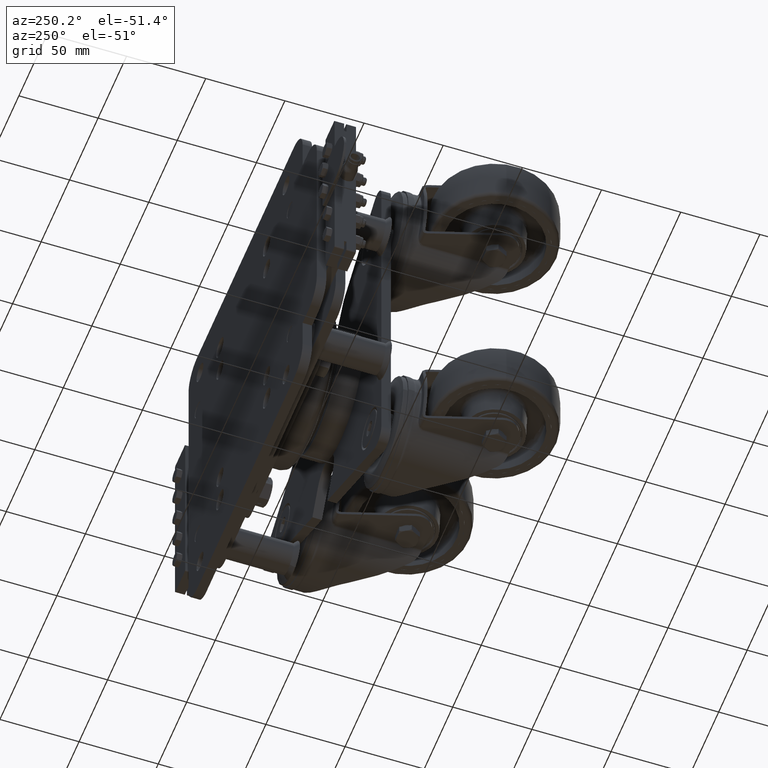
[diagram: clean part render]
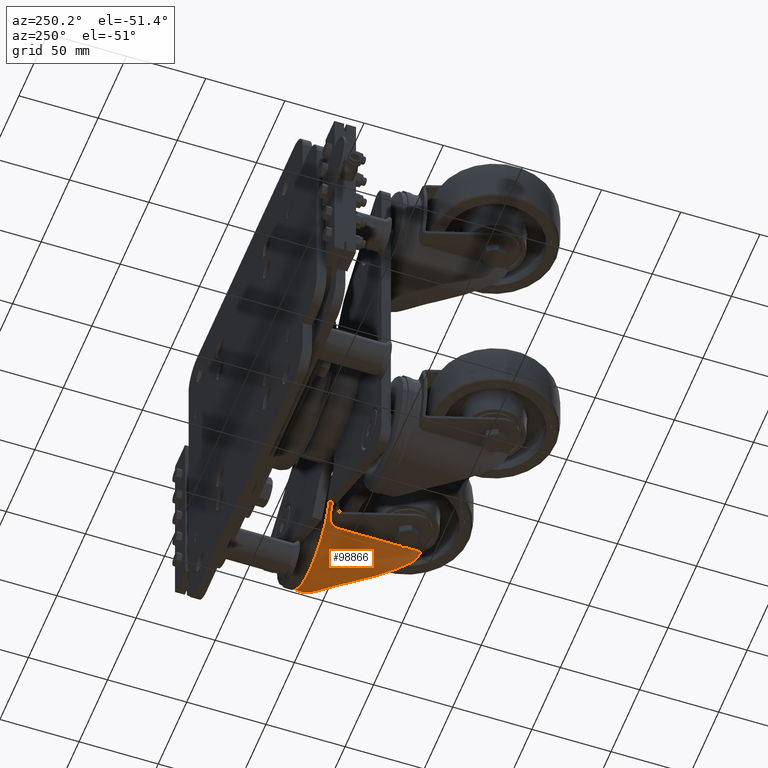
[diagram: same view with one face highlighted and labeled with its STEP entity id]
A machine part, auxiliary view. The second image highlights one B-rep face of the part: STEP entity #98866.
In plain terms, the highlighted cylindrical surface (partial cylindrical patch) has radius 35.5 mm, axis along (0, 1, -0).
Its self-contained STEP definition (entity closure, byte-faithful):
#9 = CARTESIAN_POINT ( 'NONE',  ( 94.95615465247026066, -96.94187952095114724, -35.77692591421072166 ) ) ;
#622 = CARTESIAN_POINT ( 'NONE',  ( 75.17995511379929496, -123.3000000000000540, -23.82236842105244534 ) ) ;
#1571 = CARTESIAN_POINT ( 'NONE',  ( 75.17995511379929496, -66.80000000000003979, -23.82236842105246666 ) ) ;
#2794 = CARTESIAN_POINT ( 'NONE',  ( 134.7773984609399918, -65.15536893343616498, -12.42892271601912491 ) ) ;
#3236 = CARTESIAN_POINT ( 'NONE',  ( 137.0000000000002558, -64.80000000000001137, -2.541986794972076691 ) ) ;
#3336 = ORIENTED_EDGE ( 'NONE', *, *, #82541, .T. ) ;
#3916 = CYLINDRICAL_SURFACE ( 'NONE', #46824, 35.50000000000000711 ) ;
#4533 = CARTESIAN_POINT ( 'NONE',  ( 102.8598590024065231, -85.65421990771076821, -35.47394513574102604 ) ) ;
#4790 = CARTESIAN_POINT ( 'NONE',  ( 77.18156145839577675, -120.2128750562828117, -25.87200173106295509 ) ) ;
#5448 = ORIENTED_EDGE ( 'NONE', *, *, #90269, .T. ) ;
#5658 = CARTESIAN_POINT ( 'NONE',  ( 78.68471253961250511, -119.2834382526172732, -27.19948940533992854 ) ) ;
#5874 = VERTEX_POINT ( 'NONE', #109122 ) ;
#6351 = CARTESIAN_POINT ( 'NONE',  ( 74.09830943354448607, -64.24686308670321466, -22.56983283279251751 ) ) ;
#6512 = CARTESIAN_POINT ( 'NONE',  ( 79.17180250993905588, -118.8995822694845685, -27.60074569021914570 ) ) ;
#11995 = CARTESIAN_POINT ( 'NONE',  ( 107.2690294437377361, -80.20661461310176321, -35.03093118283457130 ) ) ;
#12885 = CARTESIAN_POINT ( 'NONE',  ( 131.7239736998475621, -65.81648195536767787, -18.63217475714298033 ) ) ;
#14174 = CARTESIAN_POINT ( 'NONE',  ( 105.5784735804500798, -82.11215388130182191, -35.26728265622191572 ) ) ;
#15709 = VERTEX_POINT ( 'NONE', #34154 ) ;
#16505 = CARTESIAN_POINT ( 'NONE',  ( 74.85251593104401024, -65.90895383215855929, -23.45707028660707039 ) ) ;
#16797 = CARTESIAN_POINT ( 'NONE',  ( 66.00000000000031264, -123.3000000000000398, 1.764700454505539706E-13 ) ) ;
#19697 = EDGE_CURVE ( 'NONE', #43195, #51675, #125429, .T. ) ;
#19869 = CARTESIAN_POINT ( 'NONE',  ( 80.93017896161954639, -116.9730487464526760, -28.93324147842719896 ) ) ;
#22056 = CARTESIAN_POINT ( 'NONE',  ( 136.7300673293382545, -64.83489290149184114, -5.054412165865914019 ) ) ;
#22500 = CARTESIAN_POINT ( 'NONE',  ( 126.7663410799589627, -67.28916424157799270, -25.05481059473312300 ) ) ;
#22929 = CARTESIAN_POINT ( 'NONE',  ( 130.3206681362270558, -66.18753910577522959, -20.73675970274151581 ) ) ;
#23350 = CARTESIAN_POINT ( 'NONE',  ( 117.2099109091087996, -71.98387142428229879, -31.85335030264054623 ) ) ;
#23519 = EDGE_CURVE ( 'NONE', #37863, #58944, #108741, .T. ) ;
#24196 = ORIENTED_EDGE ( 'NONE', *, *, #104619, .T. ) ;
#25561 = EDGE_CURVE ( 'NONE', #108303, #15709, #63036, .T. ) ;
#26410 = CARTESIAN_POINT ( 'NONE',  ( 75.17995511379929496, -120.9347103782721433, -23.82236842105244534 ) ) ;
#27008 = AXIS2_PLACEMENT_3D ( 'NONE', #76760, #86824, #96870 ) ;
#29501 = EDGE_CURVE ( 'NONE', #77250, #15709, #83697, .T. ) ;
#30998 = CIRCLE ( 'NONE', #27008, 35.50000000000000711 ) ;
#31711 = ORIENTED_EDGE ( 'NONE', *, *, #19697, .T. ) ;
#32530 = CARTESIAN_POINT ( 'NONE',  ( 123.0794513467505737, -68.83356066078999902, -28.19471165324780770 ) ) ;
#32967 = CARTESIAN_POINT ( 'NONE',  ( 136.0558107432777035, -64.93895908377098181, -8.157779371437467120 ) ) ;
#33861 = CARTESIAN_POINT ( 'NONE',  ( 133.2689278267886834, -65.45551017891928325, -15.89239485598071333 ) ) ;
#34076 =( BOUNDED_CURVE ( )  B_SPLINE_CURVE ( 3, ( #109791, #9, #108949, #118569 ),
 .UNSPECIFIED., .F., .F. ) 
 B_SPLINE_CURVE_WITH_KNOTS ( ( 4, 4 ),
 ( 1.532481065245487661, 2.188827412656835225 ),
 .UNSPECIFIED. ) 
 CURVE ( )  GEOMETRIC_REPRESENTATION_ITEM ( )  RATIONAL_B_SPLINE_CURVE ( ( 1.000000000000000000, 0.9644218232756417430, 0.9644218232756417430, 1.000000000000000000 ) ) 
 REPRESENTATION_ITEM ( '' )  );
#34154 = CARTESIAN_POINT ( 'NONE',  ( 137.0000000000003126, -60.30000000000003268, 1.049115577279662282E-13 ) ) ;
#34832 = VECTOR ( 'NONE', #56016, 1000.000000000000000 ) ;
#35393 = CARTESIAN_POINT ( 'NONE',  ( 76.17364626529617055, -120.6448065672153547, -24.88619563490084730 ) ) ;
#35838 = CARTESIAN_POINT ( 'NONE',  ( 80.93017896161954639, -116.9730487464526760, -28.93324147842719896 ) ) ;
#36533 = CARTESIAN_POINT ( 'NONE',  ( 73.92285994500380752, -63.92899246514931377, -22.35682227880876383 ) ) ;
#37809 = CARTESIAN_POINT ( 'NONE',  ( 72.40632673909229311, -62.51469049374032494, -20.34642287137215177 ) ) ;
#37863 = VERTEX_POINT ( 'NONE', #1571 ) ;
#37870 = CARTESIAN_POINT ( 'NONE',  ( 74.49964136314075347, -65.04628353443216326, -23.05001490492072946 ) ) ;
#43026 = CARTESIAN_POINT ( 'NONE',  ( 101.5000000000003126, -60.30000000000003268, 1.268188338706549371E-13 ) ) ;
#43195 = VERTEX_POINT ( 'NONE', #19869 ) ;
#43459 = CARTESIAN_POINT ( 'NONE',  ( 128.4426355032607887, -66.72988773954885744, -23.25188656308728596 ) ) ;
#43883 = CARTESIAN_POINT ( 'NONE',  ( 135.9039378900746442, -64.96295396468880767, -8.776572712892075856 ) ) ;
#44238 = VECTOR ( 'NONE', #116549, 1000.000000000000000 ) ;
#46824 = AXIS2_PLACEMENT_3D ( 'NONE', #84916, #105076, #83579 ) ;
#47757 = CARTESIAN_POINT ( 'NONE',  ( 137.0000000000003126, -123.3000000000000398, 1.160666759953863849E-13 ) ) ;
#49092 = CARTESIAN_POINT ( 'NONE',  ( 73.31142364173912540, -63.17386434503004011, -21.58167533668649440 ) ) ;
#51675 = VERTEX_POINT ( 'NONE', #26410 ) ;
#52541 = CARTESIAN_POINT ( 'NONE',  ( 135.5654223588325920, -65.01840625448230071, -10.01030321434592985 ) ) ;
#53402 = CARTESIAN_POINT ( 'NONE',  ( 114.2297939752632061, -74.00841788585709935, -33.15511428304471053 ) ) ;
#53822 = DIRECTION ( 'NONE',  ( -5.551115123125663140E-17, -1.000000000000000000, 3.432265860444727251E-16 ) ) ;
#53830 = CARTESIAN_POINT ( 'NONE',  ( 124.0256753079192862, -68.41405827567274400, -27.44464314868675103 ) ) ;
#54478 = VERTEX_POINT ( 'NONE', #111948 ) ;
#54954 = CARTESIAN_POINT ( 'NONE',  ( 80.10125502634183192, -118.0342248201624642, -28.33172071162463368 ) ) ;
#55149 = CARTESIAN_POINT ( 'NONE',  ( 103.5940461062626383, -84.60569205876288379, -35.44580079096039071 ) ) ;
#55987 = CARTESIAN_POINT ( 'NONE',  ( 105.9918965993286690, -81.62781127845798324, -35.21725302681364411 ) ) ;
#56016 = DIRECTION ( 'NONE',  ( 5.551115123125663140E-17, 1.000000000000000000, -3.432265860444727251E-16 ) ) ;
#58260 = CARTESIAN_POINT ( 'NONE',  ( 71.71521320424501766, -62.30000000000003979, -19.32078861457022967 ) ) ;
#58944 = VERTEX_POINT ( 'NONE', #82053 ) ;
#58988 = ORIENTED_EDGE ( 'NONE', *, *, #23519, .T. ) ;
#61726 = FACE_OUTER_BOUND ( 'NONE', #112672, .T. ) ;
#62714 = CARTESIAN_POINT ( 'NONE',  ( 137.0000000000003126, -64.80000000000001137, 9.598792071177399696E-14 ) ) ;
#62882 = ORIENTED_EDGE ( 'NONE', *, *, #83167, .T. ) ;
#63036 = LINE ( 'NONE', #47757, #34832 ) ;
#63562 = CARTESIAN_POINT ( 'NONE',  ( 109.4587336611183872, -77.92024011640876324, -34.64208427128381373 ) ) ;
#64004 = DIRECTION ( 'NONE',  ( -1.000000000000000000, 0.0000000000000000000, 9.119840224245166076E-16 ) ) ;
#64012 = CARTESIAN_POINT ( 'NONE',  ( 120.1689089635367651, -70.26462535058655590, -30.21606292406876548 ) ) ;
#65801 = LINE ( 'NONE', #622, #128478 ) ;
#67132 = CARTESIAN_POINT ( 'NONE',  ( 73.08749617714593683, -62.96822544684846434, -21.28674432241669479 ) ) ;
#68012 = CARTESIAN_POINT ( 'NONE',  ( 71.49083145045379695, -62.30000000000003979, -18.96575342465736824 ) ) ;
#71022 = B_SPLINE_CURVE_WITH_KNOTS ( 'NONE', 3,
 ( #62714, #3236, #22056, #32967, #43883, #52541, #102109, #2794, #122248, #33861, #72766, #12885, #73189, #113898, #22929, #43459, #22500, #83250, #53830, #32530, #82811, #92933, #64012, #71908, #23350, #113472, #53402, #123536, #63562, #11995, #85027, #55987, #14174, #84123, #55149, #4533 ),
 .UNSPECIFIED., .F., .F.,
 ( 4, 2, 2, 2, 2, 2, 2, 2, 2, 2, 2, 2, 2, 2, 2, 2, 2, 4 ),
 ( 0.06069026540051974949, 0.06826659759603675992, 0.07016068064491602640, 0.07205476369379529289, 0.07584292979155381198, 0.07963109588931233107, 0.08152517893819155592, 0.08341926198707079465, 0.09099559418258763854, 0.09288967723146684952, 0.09478376028034606049, 0.09857192637810446856, 0.1023600924758628905, 0.1061482585736213125, 0.1137245907691381008, 0.1156186738180172979, 0.1175127568668964950, 0.1213009229646549031 ),
 .UNSPECIFIED. ) ;
#71908 = CARTESIAN_POINT ( 'NONE',  ( 118.2003212091128006, -71.37909565189850980, -31.34705555602569760 ) ) ;
#72527 = EDGE_CURVE ( 'NONE', #108303, #5874, #71022, .T. ) ;
#72766 = CARTESIAN_POINT ( 'NONE',  ( 132.6866364854002995, -65.58326439533929886, -17.00675731251048362 ) ) ;
#73189 = CARTESIAN_POINT ( 'NONE',  ( 131.3881884560662456, -65.90118379121915382, -19.16627711045373417 ) ) ;
#74746 = B_SPLINE_CURVE_WITH_KNOTS ( 'NONE', 3,
 ( #6351, #36533, #118315, #49092, #67132, #127085, #37809, #88139, #58260, #68012 ),
 .UNSPECIFIED., .F., .F.,
 ( 4, 2, 2, 2, 4 ),
 ( 0.0000000000000000000, 0.001242587929141079472, 0.002485175858282158944, 0.003727763787423238415, 0.004970351716564317887 ),
 .UNSPECIFIED. ) ;
#75405 = ORIENTED_EDGE ( 'NONE', *, *, #112521, .T. ) ;
#75650 = CARTESIAN_POINT ( 'NONE',  ( 77.68603470932848154, -119.9480836917929878, -26.33597468733170288 ) ) ;
#75995 = CARTESIAN_POINT ( 'NONE',  ( 74.31052024465056149, -64.63133603665491478, -22.82747474905589513 ) ) ;
#76760 = CARTESIAN_POINT ( 'NONE',  ( 101.5000000000003126, -62.30000000000003268, 1.275052870427438922E-13 ) ) ;
#77108 = ORIENTED_EDGE ( 'NONE', *, *, #25561, .F. ) ;
#77250 = VERTEX_POINT ( 'NONE', #105991 ) ;
#80422 = ORIENTED_EDGE ( 'NONE', *, *, #72527, .T. ) ;
#82053 = CARTESIAN_POINT ( 'NONE',  ( 74.09830943354448607, -64.24686308670321466, -22.56983283279251751 ) ) ;
#82214 = VERTEX_POINT ( 'NONE', #112122 ) ;
#82541 = EDGE_CURVE ( 'NONE', #5874, #43195, #34076, .T. ) ;
#82811 = CARTESIAN_POINT ( 'NONE',  ( 122.5972374978542518, -69.05622645133352933, -28.55711961495255125 ) ) ;
#83167 = EDGE_CURVE ( 'NONE', #82214, #54478, #30998, .T. ) ;
#83250 = CARTESIAN_POINT ( 'NONE',  ( 124.4900414533435651, -68.21696492498760733, -27.05689541166398726 ) ) ;
#83579 = DIRECTION ( 'NONE',  ( 1.000000000000000000, 0.0000000000000000000, -9.119840224245166076E-16 ) ) ;
#83697 = CIRCLE ( 'NONE', #91688, 35.50000000000000711 ) ;
#84123 = CARTESIAN_POINT ( 'NONE',  ( 104.3657782220105759, -83.58913396265757001, -35.39347405925828838 ) ) ;
#84916 = CARTESIAN_POINT ( 'NONE',  ( 101.5000000000003126, -123.3000000000000398, 1.484421087914567203E-13 ) ) ;
#85027 = CARTESIAN_POINT ( 'NONE',  ( 106.8370167616835005, -80.67517243573048802, -35.09912104168972036 ) ) ;
#85726 = CARTESIAN_POINT ( 'NONE',  ( 78.43508849015113071, -119.4615973951813572, -26.98832124164256641 ) ) ;
#86824 = DIRECTION ( 'NONE',  ( 5.551115123125663140E-17, 1.000000000000000000, -3.432265860444727251E-16 ) ) ;
#87772 = CARTESIAN_POINT ( 'NONE',  ( 75.01544033944466605, -66.35453114401322239, -23.64060495534980078 ) ) ;
#88139 = CARTESIAN_POINT ( 'NONE',  ( 71.94330207995197668, -62.34375940007611661, -19.66774912226055960 ) ) ;
#90269 = EDGE_CURVE ( 'NONE', #51675, #37863, #65801, .T. ) ;
#91688 = AXIS2_PLACEMENT_3D ( 'NONE', #43026, #53822, #64004 ) ;
#92933 = CARTESIAN_POINT ( 'NONE',  ( 121.1471133913334342, -69.75494268990752289, -29.59140041232194207 ) ) ;
#95777 = CARTESIAN_POINT ( 'NONE',  ( 80.53500459724358507, -117.5374162272518248, -28.65229591067148363 ) ) ;
#96870 = DIRECTION ( 'NONE',  ( -1.000000000000000000, 0.0000000000000000000, 2.380560272439154170E-17 ) ) ;
#97985 = CARTESIAN_POINT ( 'NONE',  ( 137.0000000000003126, -64.80000000000001137, 9.598792071177399696E-14 ) ) ;
#98866 = ADVANCED_FACE ( 'NONE', ( #61726 ), #3916, .T. ) ;
#100610 = LINE ( 'NONE', #16797, #44238 ) ;
#102109 = CARTESIAN_POINT ( 'NONE',  ( 135.3797821547175602, -65.04970649917412118, -10.62137953380502076 ) ) ;
#104619 = EDGE_CURVE ( 'NONE', #58944, #82214, #74746, .T. ) ;
#105076 = DIRECTION ( 'NONE',  ( 5.551115123125663140E-17, 1.000000000000000000, -3.432265860444727251E-16 ) ) ;
#105991 = CARTESIAN_POINT ( 'NONE',  ( 66.00000000000031264, -60.30000000000003268, 1.653149271831338266E-13 ) ) ;
#107907 = CARTESIAN_POINT ( 'NONE',  ( 74.09830943354448607, -64.24686308670321466, -22.56983283279251751 ) ) ;
#108303 = VERTEX_POINT ( 'NONE', #97985 ) ;
#108741 = B_SPLINE_CURVE_WITH_KNOTS ( 'NONE', 3,
 ( #126730, #87772, #16505, #37870, #75995, #107907 ),
 .UNSPECIFIED., .F., .F.,
 ( 4, 2, 4 ),
 ( -1.341640823009727537E-05, 0.001512004886496137084, 0.003037426181222371499 ),
 .UNSPECIFIED. ) ;
#108949 = CARTESIAN_POINT ( 'NONE',  ( 87.37659437033035204, -107.7666134298708158, -33.51626102689740350 ) ) ;
#109122 = CARTESIAN_POINT ( 'NONE',  ( 102.8598590024065231, -85.65421990771076821, -35.47394513574102604 ) ) ;
#109791 = CARTESIAN_POINT ( 'NONE',  ( 102.8598590024065231, -85.65421990771076821, -35.47394513574102604 ) ) ;
#111948 = CARTESIAN_POINT ( 'NONE',  ( 66.00000000000031264, -62.30000000000003268, 1.653149271831338266E-13 ) ) ;
#112122 = CARTESIAN_POINT ( 'NONE',  ( 71.49083145045379695, -62.30000000000003979, -18.96575342465736824 ) ) ;
#112521 = EDGE_CURVE ( 'NONE', #54478, #77250, #100610, .T. ) ;
#112672 = EDGE_LOOP ( 'NONE', ( #62882, #75405, #126568, #77108, #80422, #3336, #31711, #5448, #58988, #24196 ) ) ;
#113057 = DIRECTION ( 'NONE',  ( 5.551115123125663140E-17, 1.000000000000000000, -3.432265860444727251E-16 ) ) ;
#113472 = CARTESIAN_POINT ( 'NONE',  ( 115.2268343245007287, -73.29659435877066187, -32.75685036297862496 ) ) ;
#113898 = CARTESIAN_POINT ( 'NONE',  ( 130.6865302668086599, -66.08669122400119988, -20.21871505424367399 ) ) ;
#116549 = DIRECTION ( 'NONE',  ( 5.551115123125663140E-17, 1.000000000000000000, -3.432265860444727251E-16 ) ) ;
#118315 = CARTESIAN_POINT ( 'NONE',  ( 73.72801919620464162, -63.65401441212196687, -22.11519002127876021 ) ) ;
#118569 = CARTESIAN_POINT ( 'NONE',  ( 80.93017896161954639, -116.9730487464526760, -28.93324147842719896 ) ) ;
#122248 = CARTESIAN_POINT ( 'NONE',  ( 134.3143022920465626, -65.24154941554594700, -13.60347582819545487 ) ) ;
#123536 = CARTESIAN_POINT ( 'NONE',  ( 111.3164825647257317, -76.25801383283649670, -34.17782469897762354 ) ) ;
#125085 = CARTESIAN_POINT ( 'NONE',  ( 75.67038382415634601, -120.8112464878237375, -24.36421654639130452 ) ) ;
#125429 = B_SPLINE_CURVE_WITH_KNOTS ( 'NONE', 3,
 ( #35838, #95777, #54954, #125534, #6512, #5658, #85726, #75650, #4790, #35393, #125085, #125982 ),
 .UNSPECIFIED., .F., .F.,
 ( 4, 2, 2, 2, 2, 4 ),
 ( 3.469446951953614189E-18, 0.002195199670019376461, 0.003292799505029062740, 0.004390399340038749453, 0.006585599010058133286, 0.008780798680077517987 ),
 .UNSPECIFIED. ) ;
#125534 = CARTESIAN_POINT ( 'NONE',  ( 79.40938853870125058, -118.6940207777000182, -27.79101575146561132 ) ) ;
#125982 = CARTESIAN_POINT ( 'NONE',  ( 75.17995511379929496, -120.9347103782721433, -23.82236842105244534 ) ) ;
#126568 = ORIENTED_EDGE ( 'NONE', *, *, #29501, .T. ) ;
#126730 = CARTESIAN_POINT ( 'NONE',  ( 75.17995511379929496, -66.80000000000003979, -23.82236842105246666 ) ) ;
#127085 = CARTESIAN_POINT ( 'NONE',  ( 72.63611510300736995, -62.64008945189994648, -20.67055891805532397 ) ) ;
#128478 = VECTOR ( 'NONE', #113057, 1000.000000000000000 ) ;